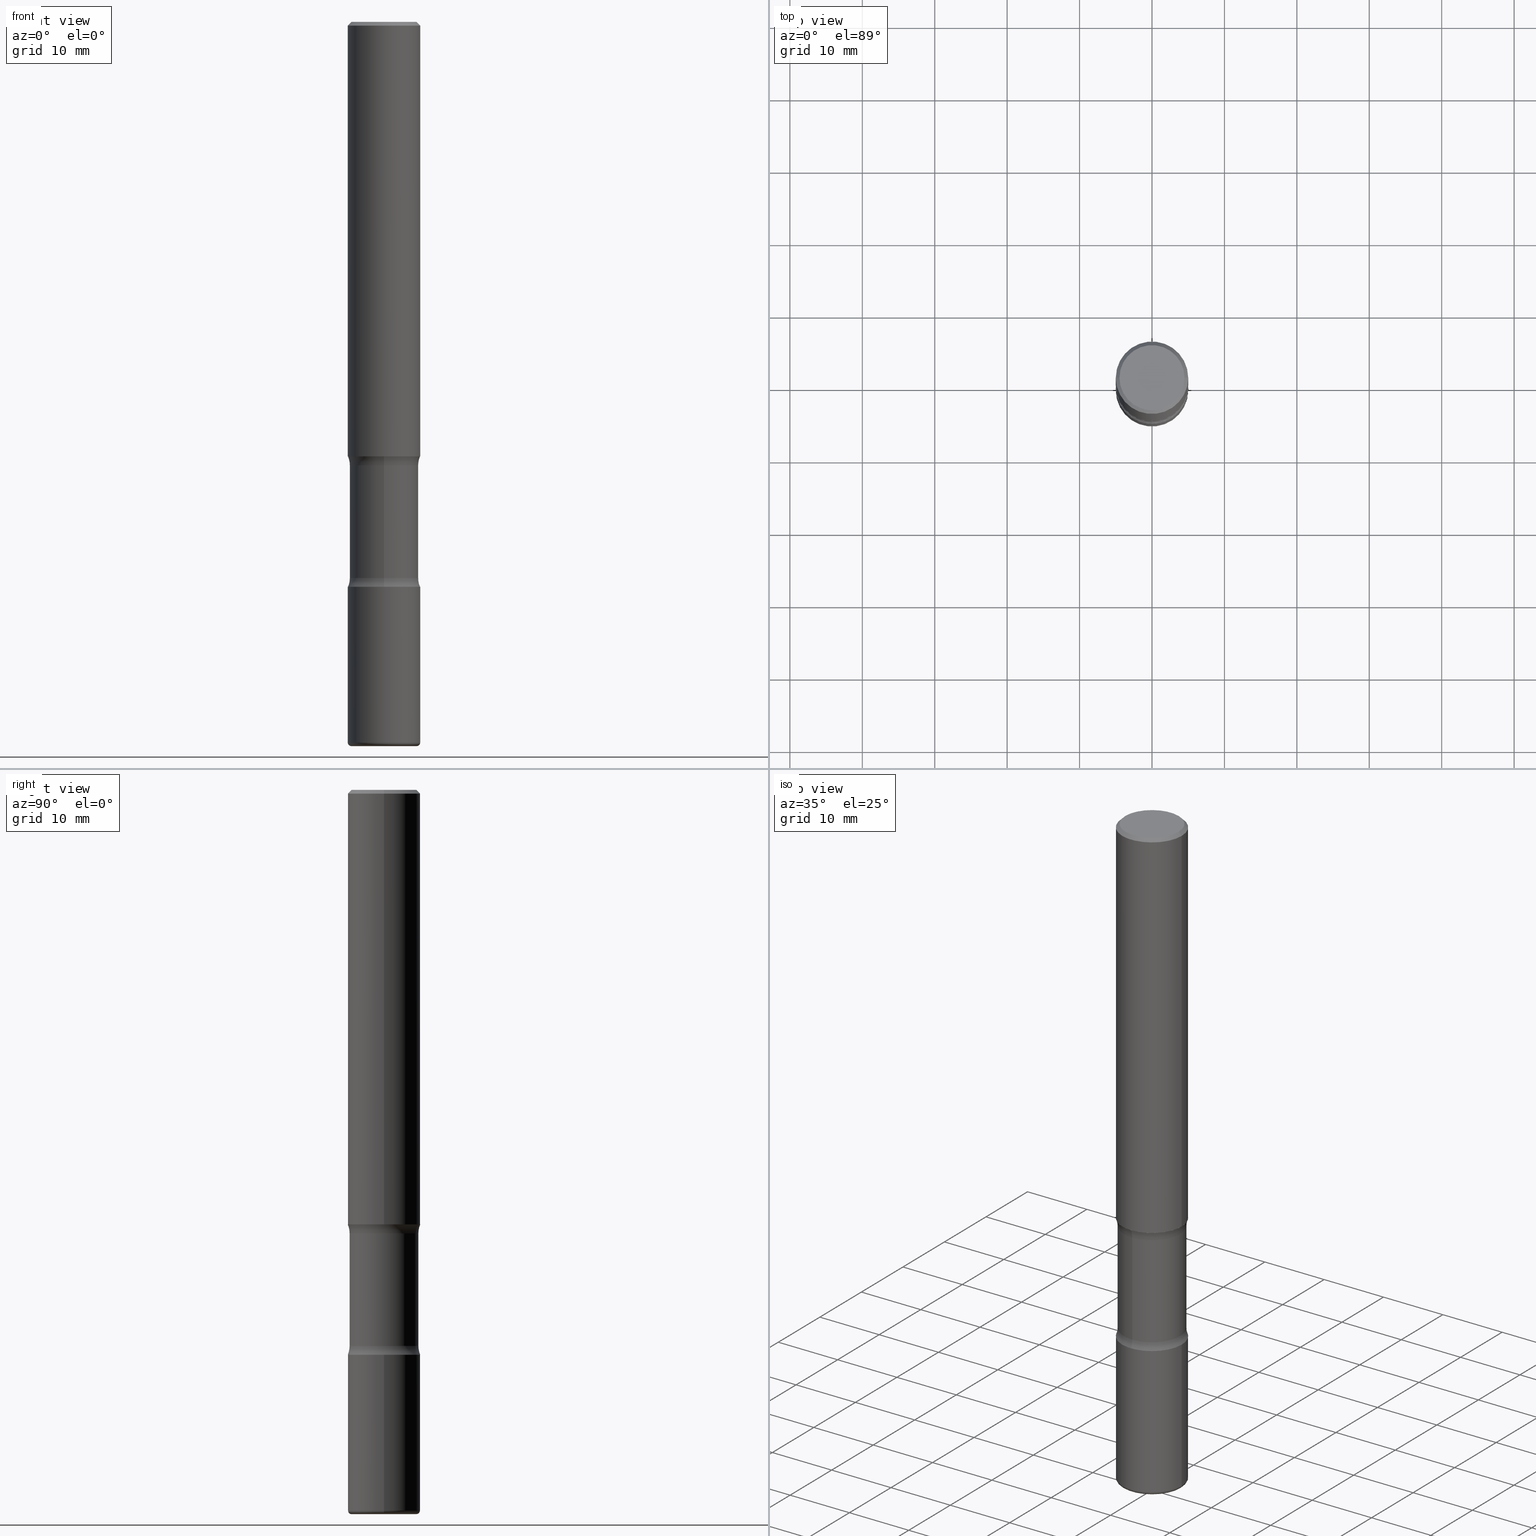
[diagram: canonical four-view strip — front | top / right | iso, engineering-drawing reading convention]
A machine part, canonical four-view strip (front | top / right | iso — engineering-drawing reading convention). The complete STEP part file that produces these views, byte-faithful:
ISO-10303-21;
HEADER;
FILE_DESCRIPTION (( 'STEP AP203' ),
    '1' );
FILE_NAME ('47671.STEP',
    '2024-03-02T06:51:45',
    ( '' ),
    ( '' ),
    'SwSTEP 2.0',
    'SolidWorks 2023',
    '' );
FILE_SCHEMA (( 'CONFIG_CONTROL_DESIGN' ));
ENDSEC;

DATA;
#1 = ADVANCED_FACE ( 'NONE', ( #278 ), #286, .T. ) ;
#2 = DIRECTION ( 'NONE',  ( -2.445468806185136597E-29, 3.491481338843145583E-15, 1.000000000000000000 ) ) ;
#3 = DIRECTION ( 'NONE',  ( -6.982962677686266711E-15, -1.000000000000000000, 3.491481338843145583E-15 ) ) ;
#4 = ORIENTED_EDGE ( 'NONE', *, *, #156, .T. ) ;
#5 = DIRECTION ( 'NONE',  ( 2.540626945080028130E-29, -3.355209467880746123E-15, -1.000000000000000000 ) ) ;
#6 = DIRECTION ( 'NONE',  ( 1.000000000000000000, -6.982962677686265133E-15, 0.000000000000000000 ) ) ;
#7 = DIRECTION ( 'NONE',  ( -2.445468806185136877E-29, 3.491481338843145188E-15, 1.000000000000000000 ) ) ;
#8 = DIRECTION ( 'NONE',  ( 1.000000000000000000, -6.982962677686266711E-15, 4.875932113059880811E-29 ) ) ;
#9 = DIRECTION ( 'NONE',  ( 1.000000000000000000, -6.982962677686266711E-15, 0.000000000000000000 ) ) ;
#10 = EDGE_CURVE ( 'NONE', #191, #338, #199, .T. ) ;
#11 = AXIS2_PLACEMENT_3D ( 'NONE', #425, #376, #305 ) ;
#12 = VERTEX_POINT ( 'NONE', #237 ) ;
#13 = VERTEX_POINT ( 'NONE', #549 ) ;
#14 =( NAMED_UNIT ( * ) SI_UNIT ( $, .STERADIAN. ) SOLID_ANGLE_UNIT ( ) );
#15 = DIMENSIONAL_EXPONENTS ( 1.000000000000000000, 0.000000000000000000, 0.000000000000000000, 0.000000000000000000, 0.000000000000000000, 0.000000000000000000, 0.000000000000000000 ) ;
#16 = APPLICATION_CONTEXT ( 'configuration controlled 3d designs of mechanical parts and assemblies' ) ;
#17 = DATE_AND_TIME ( #439, #479 ) ;
#18 = AXIS2_PLACEMENT_3D ( 'NONE', #74, #330, #35 ) ;
#19 = FACE_OUTER_BOUND ( 'NONE', #62, .T. ) ;
#20 = CIRCLE ( 'NONE', #486, 0.1968499999999999417 ) ;
#21 = DIRECTION ( 'NONE',  ( 1.000000000000000000, -6.982962677686265133E-15, 0.000000000000000000 ) ) ;
#22 = AXIS2_PLACEMENT_3D ( 'NONE', #393, #180, #222 ) ;
#23 = ORIENTED_EDGE ( 'NONE', *, *, #318, .T. ) ;
#24 = EDGE_CURVE ( 'NONE', #368, #191, #263, .T. ) ;
#25 = CYLINDRICAL_SURFACE ( 'NONE', #207, 0.1968500000000001360 ) ;
#26 = ORIENTED_EDGE ( 'NONE', *, *, #119, .F. ) ;
#27 = FACE_OUTER_BOUND ( 'NONE', #541, .T. ) ;
#28 = AXIS2_PLACEMENT_3D ( 'NONE', #174, #246, #81 ) ;
#29 = AXIS2_PLACEMENT_3D ( 'NONE', #248, #86, #505 ) ;
#30 = SECURITY_CLASSIFICATION ( '', '', #400 ) ;
#31 = DIRECTION ( 'NONE',  ( 2.445468806185136597E-29, -3.491481338843145583E-15, -1.000000000000000000 ) ) ;
#32 = EDGE_LOOP ( 'NONE', ( #195, #364, #514, #164 ) ) ;
#33 = CARTESIAN_POINT ( 'NONE',  ( 4.890937612370289799E-31, -6.982962677686315028E-17, -0.02000000000000006981 ) ) ;
#34 = CYLINDRICAL_SURFACE ( 'NONE', #406, 0.1968500000000001360 ) ;
#35 = DIRECTION ( 'NONE',  ( -6.982962677686264344E-15, -1.000000000000000000, 0.000000000000000000 ) ) ;
#36 = DATE_TIME_ROLE ( 'classification_date' ) ;
#37 = ORIENTED_EDGE ( 'NONE', *, *, #408, .F. ) ;
#38 = CYLINDRICAL_SURFACE ( 'NONE', #241, 0.1870000000000000828 ) ;
#39 = CARTESIAN_POINT ( 'NONE',  ( -0.1968499999999999417, 1.304766576325678113E-15, -0.02000000000000006981 ) ) ;
#40 = CIRCLE ( 'NONE', #349, 0.1968500000000002748 ) ;
#41 = CARTESIAN_POINT ( 'NONE',  ( 1.305814020727429425E-15, 0.1869999999999864548, -3.937000000000000721 ) ) ;
#42 = ORGANIZATION ( 'UNSPECIFIED', 'UNSPECIFIED', '' ) ;
#43 = ORIENTED_EDGE ( 'NONE', *, *, #452, .F. ) ;
#44 = APPLICATION_CONTEXT ( 'configuration controlled 3d designs of mechanical parts and assemblies' ) ;
#45 = DIRECTION ( 'NONE',  ( 1.000000000000000000, -6.982962677686266711E-15, 4.876176775795935793E-29 ) ) ;
#46 = LINE ( 'NONE', #214, #151 ) ;
#47 = ORIENTED_EDGE ( 'NONE', *, *, #524, .F. ) ;
#48 = FACE_OUTER_BOUND ( 'NONE', #311, .T. ) ;
#49 = DIRECTION ( 'NONE',  ( -2.445468806185136597E-29, 3.491481338843145583E-15, 1.000000000000000000 ) ) ;
#50 = UNCERTAINTY_MEASURE_WITH_UNIT (LENGTH_MEASURE( 1.000000000000000082E-05 ), #225, 'distance_accuracy_value', 'NONE');
#51 = PERSON_AND_ORGANIZATION ( #398, #42 ) ;
#52 = CARTESIAN_POINT ( 'NONE',  ( -1.350489030861270998E-15, -0.1968500000000086292, -2.362199999999999189 ) ) ;
#53 = AXIS2_PLACEMENT_3D ( 'NONE', #259, #298, #8 ) ;
#54 = EDGE_LOOP ( 'NONE', ( #118, #334 ) ) ;
#55 = DIRECTION ( 'NONE',  ( -2.445468806185136877E-29, 3.491481338843145188E-15, 1.000000000000000000 ) ) ;
#56 = CALENDAR_DATE ( 2024, 2, 3 ) ;
#57 = PERSON_AND_ORGANIZATION ( #398, #42 ) ;
#58 = DIRECTION ( 'NONE',  ( -1.000000000000000000, 6.982962677686265922E-15, -4.876176775795935793E-29 ) ) ;
#59 = PERSON_AND_ORGANIZATION ( #398, #42 ) ;
#60 = CIRCLE ( 'NONE', #109, 0.1968500000000001082 ) ;
#61 = AXIS2_PLACEMENT_3D ( 'NONE', #251, #244, #90 ) ;
#62 = EDGE_LOOP ( 'NONE', ( #70, #87 ) ) ;
#63 = DIRECTION ( 'NONE',  ( 2.438088387897960049E-29, -3.491481338843145188E-15, -1.000000000000000000 ) ) ;
#64 = EDGE_CURVE ( 'NONE', #466, #215, #20, .T. ) ;
#65 = CC_DESIGN_PERSON_AND_ORGANIZATION_ASSIGNMENT ( #142, #145, ( #224 ) ) ;
#66 = ORIENTED_EDGE ( 'NONE', *, *, #531, .F. ) ;
#67 = CIRCLE ( 'NONE', #29, 0.1771500000000001962 ) ;
#68 = ORIENTED_EDGE ( 'NONE', *, *, #221, .F. ) ;
#69 = VERTEX_POINT ( 'NONE', #515 ) ;
#70 = ORIENTED_EDGE ( 'NONE', *, *, #221, .T. ) ;
#71 = COORDINATED_UNIVERSAL_TIME_OFFSET ( 5, 0, .BEHIND. ) ;
#72 = ADVANCED_FACE ( 'NONE', ( #507 ), #123, .F. ) ;
#73 = DIRECTION ( 'NONE',  ( 2.540626945080028130E-29, -3.355209467880745729E-15, -1.000000000000000000 ) ) ;
#74 = CARTESIAN_POINT ( 'NONE',  ( 2.178684355438174110E-15, 0.3119999999999916729, -2.410836174808471011 ) ) ;
#75 = ORIENTED_EDGE ( 'NONE', *, *, #524, .T. ) ;
#76 = AXIS2_PLACEMENT_3D ( 'NONE', #483, #149, #230 ) ;
#77 = TOROIDAL_SURFACE ( 'NONE', #97, 0.1771500000000001962, 0.01969999999999985998 ) ;
#78 = DIRECTION ( 'NONE',  ( 2.540626945080028130E-29, -3.355209467880746123E-15, -1.000000000000000000 ) ) ;
#79 = DIRECTION ( 'NONE',  ( -2.445468806185136597E-29, 3.491481338843145583E-15, 1.000000000000000000 ) ) ;
#80 = ORIENTED_EDGE ( 'NONE', *, *, #348, .F. ) ;
#81 = DIRECTION ( 'NONE',  ( 6.982962677686266711E-15, 1.000000000000000000, -2.921762560068729411E-15 ) ) ;
#82 = DIRECTION ( 'NONE',  ( -1.000000000000000000, 6.982962677686265922E-15, -4.876176775795935793E-29 ) ) ;
#83 = ORIENTED_EDGE ( 'NONE', *, *, #153, .F. ) ;
#84 = DIRECTION ( 'NONE',  ( 2.438088387897960049E-29, -3.491481338843145188E-15, -1.000000000000000000 ) ) ;
#85 = EDGE_CURVE ( 'NONE', #191, #368, #471, .T. ) ;
#86 = DIRECTION ( 'NONE',  ( -2.445468806185136597E-29, 3.491481338843145583E-15, 1.000000000000000000 ) ) ;
#87 = ORIENTED_EDGE ( 'NONE', *, *, #408, .T. ) ;
#88 = DIRECTION ( 'NONE',  ( 1.000000000000000000, -6.982962677686266711E-15, 0.000000000000000000 ) ) ;
#89 = VECTOR ( 'NONE', #73, 39.37007874015748143 ) ;
#90 = DIRECTION ( 'NONE',  ( 1.000000000000000000, -6.982962677686265133E-15, 0.000000000000000000 ) ) ;
#91 = TOROIDAL_SURFACE ( 'NONE', #385, 0.1771500000000001962, 0.01969999999999985998 ) ;
#92 = DIRECTION ( 'NONE',  ( 1.000000000000000000, -6.982962677686265133E-15, 0.000000000000000000 ) ) ;
#93 = ORIENTED_EDGE ( 'NONE', *, *, #348, .T. ) ;
#94 = ORIENTED_EDGE ( 'NONE', *, *, #10, .T. ) ;
#95 = CARTESIAN_POINT ( 'NONE',  ( -2.140475375304643950E-15, -0.3120000000000106577, -3.022263825191529474 ) ) ;
#96 = AXIS2_PLACEMENT_3D ( 'NONE', #414, #5, #420 ) ;
#97 = AXIS2_PLACEMENT_3D ( 'NONE', #362, #545, #358 ) ;
#98 = VERTEX_POINT ( 'NONE', #511 ) ;
#99 = ORIENTED_EDGE ( 'NONE', *, *, #341, .F. ) ;
#100 = DIRECTION ( 'NONE',  ( 6.860497997771529196E-15, 1.000000000000000000, 0.000000000000000000 ) ) ;
#101 = VERTEX_POINT ( 'NONE', #522 ) ;
#102 = COORDINATED_UNIVERSAL_TIME_OFFSET ( 5, 0, .BEHIND. ) ;
#103 = CARTESIAN_POINT ( 'NONE',  ( 0.000000000000000000, 0.000000000000000000, 0.000000000000000000 ) ) ;
#104 = AXIS2_PLACEMENT_3D ( 'NONE', #339, #79, #517 ) ;
#105 = DIRECTION ( 'NONE',  ( 2.540626945080028130E-29, -3.355209467880746123E-15, -1.000000000000000000 ) ) ;
#106 = EDGE_CURVE ( 'NONE', #215, #466, #556, .T. ) ;
#107 = VERTEX_POINT ( 'NONE', #289 ) ;
#108 = EDGE_LOOP ( 'NONE', ( #281, #94, #409, #115 ) ) ;
#109 = AXIS2_PLACEMENT_3D ( 'NONE', #210, #421, #92 ) ;
#110 = AXIS2_PLACEMENT_3D ( 'NONE', #457, #238, #124 ) ;
#111 = ORIENTED_EDGE ( 'NONE', *, *, #113, .T. ) ;
#112 = DIRECTION ( 'NONE',  ( -2.445468806185136597E-29, 3.491481338843145583E-15, 1.000000000000000000 ) ) ;
#113 = EDGE_CURVE ( 'NONE', #101, #215, #138, .T. ) ;
#114 = VERTEX_POINT ( 'NONE', #52 ) ;
#115 = ORIENTED_EDGE ( 'NONE', *, *, #433, .F. ) ;
#116 = CARTESIAN_POINT ( 'NONE',  ( 5.847933680864636237E-29, -8.485685715193371918E-15, -2.410836174808470123 ) ) ;
#117 = CARTESIAN_POINT ( 'NONE',  ( 7.390851908567657271E-29, -1.055217774671693035E-14, -3.022263825191530362 ) ) ;
#118 = ORIENTED_EDGE ( 'NONE', *, *, #156, .F. ) ;
#119 = EDGE_CURVE ( 'NONE', #107, #466, #552, .T. ) ;
#120 = AXIS2_PLACEMENT_3D ( 'NONE', #264, #474, #434 ) ;
#121 = APPROVAL_PERSON_ORGANIZATION ( #57, #437, #484 ) ;
#122 = CC_DESIGN_DATE_AND_TIME_ASSIGNMENT ( #315, #482, ( #224 ) ) ;
#123 = PLANE ( 'NONE',  #239 ) ;
#124 = DIRECTION ( 'NONE',  ( -6.982962677686265133E-15, -1.000000000000000000, 0.000000000000000000 ) ) ;
#125 = CARTESIAN_POINT ( 'NONE',  ( 5.709247840935720689E-29, -8.344153093566332027E-15, -2.362200000000000077 ) ) ;
#126 = ORIENTED_EDGE ( 'NONE', *, *, #85, .T. ) ;
#127 = LINE ( 'NONE', #379, #441 ) ;
#128 = CARTESIAN_POINT ( 'NONE',  ( 1.305814020727390771E-15, 0.1869999999999916174, -2.410836174808470567 ) ) ;
#129 = DIRECTION ( 'NONE',  ( 2.540626945080028130E-29, -3.355209467880746123E-15, -1.000000000000000000 ) ) ;
#130 = VERTEX_POINT ( 'NONE', #523 ) ;
#131 = TOROIDAL_SURFACE ( 'NONE', #440, 0.3120000000000001106, 0.1250000000000000833 ) ;
#132 = CIRCLE ( 'NONE', #96, 0.1968500000000001915 ) ;
#133 = DIRECTION ( 'NONE',  ( 1.000000000000000000, -6.982962677686266711E-15, 4.876176775795935793E-29 ) ) ;
#134 = CIRCLE ( 'NONE', #61, 0.1968500000000001082 ) ;
#135 = PRODUCT ( '47671', '47671', '', ( #436 ) ) ;
#136 = APPROVAL_PERSON_ORGANIZATION ( #161, #497, #253 ) ;
#137 = LENGTH_MEASURE_WITH_UNIT ( LENGTH_MEASURE( 0.02539999999999999897 ), #312 );
#138 = LINE ( 'NONE', #307, #546 ) ;
#139 = EDGE_CURVE ( 'NONE', #114, #275, #226, .T. ) ;
#140 = CALENDAR_DATE ( 2024, 2, 3 ) ;
#141 = ORIENTED_EDGE ( 'NONE', *, *, #231, .T. ) ;
#142 = PERSON_AND_ORGANIZATION ( #398, #42 ) ;
#143 = ADVANCED_FACE ( 'NONE', ( #310 ), #279, .F. ) ;
#144 = CIRCLE ( 'NONE', #104, 0.1968500000000001915 ) ;
#145 = PERSON_AND_ORGANIZATION_ROLE ( 'creator' ) ;
#146 = PRODUCT_RELATED_PRODUCT_CATEGORY ( 'detail', '', ( #135 ) ) ;
#147 = DIRECTION ( 'NONE',  ( -1.000000000000000000, 7.105427357600978193E-15, 0.000000000000000000 ) ) ;
#148 = DIRECTION ( 'NONE',  ( -2.445468806185136597E-29, 3.491481338843145583E-15, 1.000000000000000000 ) ) ;
#149 = DIRECTION ( 'NONE',  ( -2.540626945080027570E-29, 3.355209467880745729E-15, 1.000000000000000000 ) ) ;
#150 = CARTESIAN_POINT ( 'NONE',  ( -1.316701078222244837E-15, -0.1870000000000086315, -2.410836174808469679 ) ) ;
#151 = VECTOR ( 'NONE', #7, 39.37007874015748143 ) ;
#152 = COORDINATED_UNIVERSAL_TIME_OFFSET ( 5, 0, .BEHIND. ) ;
#153 = EDGE_CURVE ( 'NONE', #372, #476, #477, .T. ) ;
#154 = CIRCLE ( 'NONE', #519, 0.1968500000000001082 ) ;
#155 = ORIENTED_EDGE ( 'NONE', *, *, #106, .T. ) ;
#156 = EDGE_CURVE ( 'NONE', #275, #114, #40, .T. ) ;
#157 = DIRECTION ( 'NONE',  ( 6.982962677686266711E-15, 1.000000000000000000, -2.921762560068729806E-15 ) ) ;
#158 = AXIS2_PLACEMENT_3D ( 'NONE', #548, #160, #282 ) ;
#159 = CC_DESIGN_SECURITY_CLASSIFICATION ( #30, ( #321 ) ) ;
#160 = DIRECTION ( 'NONE',  ( 2.445468806185136597E-29, -3.491481338843145583E-15, -1.000000000000000000 ) ) ;
#161 = PERSON_AND_ORGANIZATION ( #398, #42 ) ;
#162 = CYLINDRICAL_SURFACE ( 'NONE', #365, 0.1968500000000000527 ) ;
#163 = EDGE_CURVE ( 'NONE', #101, #98, #60, .T. ) ;
#164 = ORIENTED_EDGE ( 'NONE', *, *, #394, .F. ) ;
#165 = FACE_OUTER_BOUND ( 'NONE', #54, .T. ) ;
#166 = AXIS2_PLACEMENT_3D ( 'NONE', #401, #105, #403 ) ;
#167 = ORIENTED_EDGE ( 'NONE', *, *, #389, .F. ) ;
#168 = CARTESIAN_POINT ( 'NONE',  ( -0.1771500000000001962, -1.238285602396647324E-14, -3.937000000000000277 ) ) ;
#169 = CARTESIAN_POINT ( 'NONE',  ( 7.509790156913936305E-29, -1.072199004345341739E-14, -3.070900000000000407 ) ) ;
#170 = ORIENTED_EDGE ( 'NONE', *, *, #323, .F. ) ;
#171 = EDGE_CURVE ( 'NONE', #475, #69, #46, .T. ) ;
#172 = CARTESIAN_POINT ( 'NONE',  ( -1.316701078222226890E-15, -0.1870000000000106022, -3.022263825191529918 ) ) ;
#173 = ORIENTED_EDGE ( 'NONE', *, *, #64, .F. ) ;
#174 = CARTESIAN_POINT ( 'NONE',  ( 9.710227154047748282E-29, -1.362793696358492956E-14, -3.937000000000000277 ) ) ;
#175 = CLOSED_SHELL ( 'NONE', ( #495, #503, #327, #516, #423, #178 ) ) ;
#176 = VECTOR ( 'NONE', #377, 39.37007874015748143 ) ;
#177 = CARTESIAN_POINT ( 'NONE',  ( 5.709247840935720689E-29, -8.344153093566332027E-15, -2.362200000000000077 ) ) ;
#178 = ADVANCED_FACE ( 'NONE', ( #520 ), #306, .F. ) ;
#179 = ORIENTED_EDGE ( 'NONE', *, *, #119, .T. ) ;
#180 = DIRECTION ( 'NONE',  ( 0.000000000000000000, 0.000000000000000000, 1.000000000000000000 ) ) ;
#181 = CARTESIAN_POINT ( 'NONE',  ( 9.579634954469036932E-29, -1.367717984865025539E-14, -3.917300000000000448 ) ) ;
#182 = FACE_OUTER_BOUND ( 'NONE', #292, .T. ) ;
#183 = AXIS2_PLACEMENT_3D ( 'NONE', #447, #488, #443 ) ;
#184 = CIRCLE ( 'NONE', #419, 0.1250000000000001110 ) ;
#185 = DIRECTION ( 'NONE',  ( 1.000000000000000000, -6.982962677686272233E-15, 0.000000000000000000 ) ) ;
#186 = ADVANCED_FACE ( 'NONE', ( #19 ), #351, .F. ) ;
#187 = CARTESIAN_POINT ( 'NONE',  ( 7.386223780689915972E-29, -1.055880548925453445E-14, -3.022263825191530362 ) ) ;
#188 = AXIS2_PLACEMENT_3D ( 'NONE', #192, #2, #45 ) ;
#189 = EDGE_CURVE ( 'NONE', #107, #13, #384, .T. ) ;
#190 = ORIENTED_EDGE ( 'NONE', *, *, #427, .T. ) ;
#191 = VERTEX_POINT ( 'NONE', #150 ) ;
#192 = CARTESIAN_POINT ( 'NONE',  ( 0.000000000000000000, 0.000000000000000000, 0.000000000000000000 ) ) ;
#193 = CONICAL_SURFACE ( 'NONE', #227, 0.1968499999999999417, 0.7853981633974479459 ) ;
#194 = AXIS2_PLACEMENT_3D ( 'NONE', #169, #148, #185 ) ;
#195 = ORIENTED_EDGE ( 'NONE', *, *, #544, .F. ) ;
#196 = CARTESIAN_POINT ( 'NONE',  ( 9.627810689950883669E-29, -1.374596203102546341E-14, -3.937000000000000277 ) ) ;
#197 = EDGE_LOOP ( 'NONE', ( #93, #328, #66, #83 ) ) ;
#198 = DIRECTION ( 'NONE',  ( 6.982962677686265922E-15, 1.000000000000000000, -3.355209467880746123E-15 ) ) ;
#199 = LINE ( 'NONE', #456, #89 ) ;
#200 = CARTESIAN_POINT ( 'NONE',  ( 0.000000000000000000, 0.000000000000000000, 0.000000000000000000 ) ) ;
#201 = DIRECTION ( 'NONE',  ( 6.982962677686265922E-15, 1.000000000000000000, -3.355209467880746123E-15 ) ) ;
#202 = ADVANCED_BREP_SHAPE_REPRESENTATION ( '47671', ( #481, #490, #293, #22 ), #357 ) ;
#203 = CARTESIAN_POINT ( 'NONE',  ( 0.1771500000000001962, -1.491421168700237936E-14, -3.917300000000000448 ) ) ;
#204 = APPROVAL_STATUS ( 'not_yet_approved' ) ;
#205 = ORIENTED_EDGE ( 'NONE', *, *, #283, .T. ) ;
#206 = AXIS2_PLACEMENT_3D ( 'NONE', #260, #49, #9 ) ;
#207 = AXIS2_PLACEMENT_3D ( 'NONE', #103, #446, #532 ) ;
#208 = DIRECTION ( 'NONE',  ( -1.000000000000000000, 6.982962677686265922E-15, -4.876176775795935793E-29 ) ) ;
#209 = FACE_OUTER_BOUND ( 'NONE', #280, .T. ) ;
#210 = CARTESIAN_POINT ( 'NONE',  ( 5.776686413970529753E-29, -8.247577218615279626E-15, -2.362200000000000077 ) ) ;
#211 = ORIENTED_EDGE ( 'NONE', *, *, #242, .F. ) ;
#212 = ADVANCED_FACE ( 'NONE', ( #489 ), #274, .F. ) ;
#213 = CARTESIAN_POINT ( 'NONE',  ( 7.509790156913936305E-29, -1.072199004345341739E-14, -3.070900000000000407 ) ) ;
#214 = CARTESIAN_POINT ( 'NONE',  ( -0.1968500000000001360, 1.398703375343758182E-15, -9.682923725166790684E-30 ) ) ;
#215 = VERTEX_POINT ( 'NONE', #249 ) ;
#216 = CARTESIAN_POINT ( 'NONE',  ( 0.1968499999999999417, -1.420318657638188727E-15, -0.02000000000000006981 ) ) ;
#217 = ORIENTED_EDGE ( 'NONE', *, *, #510, .T. ) ;
#218 = APPLICATION_PROTOCOL_DEFINITION ( 'international standard', 'config_control_design', 1994, #44 ) ;
#219 = CIRCLE ( 'NONE', #536, 0.1250000000000000278 ) ;
#220 = CARTESIAN_POINT ( 'NONE',  ( -0.1771500000000001962, -1.241845339225123848E-14, -3.917300000000000448 ) ) ;
#221 = EDGE_CURVE ( 'NONE', #560, #324, #132, .T. ) ;
#222 = DIRECTION ( 'NONE',  ( 1.000000000000000000, 0.000000000000000000, 0.000000000000000000 ) ) ;
#223 = ORIENTED_EDGE ( 'NONE', *, *, #113, .F. ) ;
#224 = PRODUCT_DEFINITION ( 'UNKNOWN', '', #321, #250 ) ;
#225 =( CONVERSION_BASED_UNIT ( 'INCH', #137 ) LENGTH_UNIT ( ) NAMED_UNIT ( #15 ) );
#226 = CIRCLE ( 'NONE', #320, 0.1968500000000002748 ) ;
#227 = AXIS2_PLACEMENT_3D ( 'NONE', #405, #31, #332 ) ;
#228 = PERSON_AND_ORGANIZATION ( #398, #42 ) ;
#229 = EDGE_CURVE ( 'NONE', #13, #215, #375, .T. ) ;
#230 = DIRECTION ( 'NONE',  ( -6.982962677686265922E-15, -1.000000000000000000, 3.355209467880745729E-15 ) ) ;
#231 = EDGE_CURVE ( 'NONE', #13, #107, #535, .T. ) ;
#232 = ORIENTED_EDGE ( 'NONE', *, *, #189, .T. ) ;
#233 = AXIS2_PLACEMENT_3D ( 'NONE', #203, #3, #333 ) ;
#234 = AXIS2_PLACEMENT_3D ( 'NONE', #196, #296, #82 ) ;
#235 = ORIENTED_EDGE ( 'NONE', *, *, #171, .F. ) ;
#236 = EDGE_LOOP ( 'NONE', ( #500, #179, #504, #345 ) ) ;
#237 = CARTESIAN_POINT ( 'NONE',  ( 1.305814020727405957E-15, 0.1869999999999895079, -3.022263825191530806 ) ) ;
#238 = DIRECTION ( 'NONE',  ( -1.000000000000000000, 6.982962677686265922E-15, -4.883557194083112901E-29 ) ) ;
#239 = AXIS2_PLACEMENT_3D ( 'NONE', #467, #84, #208 ) ;
#240 = VERTEX_POINT ( 'NONE', #168 ) ;
#241 = AXIS2_PLACEMENT_3D ( 'NONE', #374, #502, #464 ) ;
#242 = EDGE_CURVE ( 'NONE', #476, #130, #127, .T. ) ;
#243 = DIRECTION ( 'NONE',  ( 6.982962677686266711E-15, 1.000000000000000000, -2.921762560068729017E-15 ) ) ;
#244 = DIRECTION ( 'NONE',  ( -2.445468806185136597E-29, 3.491481338843145583E-15, 1.000000000000000000 ) ) ;
#245 = ORIENTED_EDGE ( 'NONE', *, *, #540, .F. ) ;
#246 = DIRECTION ( 'NONE',  ( 2.540626945080028130E-29, -3.355209467880746123E-15, -1.000000000000000000 ) ) ;
#247 = CARTESIAN_POINT ( 'NONE',  ( 0.1968500000000000805, -1.505177605175279857E-14, -3.917300000000000448 ) ) ;
#248 = CARTESIAN_POINT ( 'NONE',  ( 9.627810689950883669E-29, -1.374596203102546341E-14, -3.937000000000000277 ) ) ;
#249 = CARTESIAN_POINT ( 'NONE',  ( -0.1968499999999999417, 1.304766576325678113E-15, -0.02000000000000006981 ) ) ;
#250 = DESIGN_CONTEXT ( 'detailed design', #44, 'design' ) ;
#251 = CARTESIAN_POINT ( 'NONE',  ( 9.579634954469036932E-29, -1.367717984865025539E-14, -3.917300000000000448 ) ) ;
#252 = ADVANCED_FACE ( 'NONE', ( #48 ), #131, .F. ) ;
#253 = APPROVAL_ROLE ( '' ) ;
#254 = EDGE_LOOP ( 'NONE', ( #352, #435 ) ) ;
#255 = CARTESIAN_POINT ( 'NONE',  ( 0.1771500000000001962, -1.498299386937758739E-14, -3.937000000000000277 ) ) ;
#256 = ADVANCED_FACE ( 'NONE', ( #369 ), #462, .T. ) ;
#257 = ORIENTED_EDGE ( 'NONE', *, *, #389, .T. ) ;
#258 = PLANE ( 'NONE',  #460 ) ;
#259 = CARTESIAN_POINT ( 'NONE',  ( -1.043851414335219820E-46, 1.490343170380447200E-32, 4.268512490100411279E-18 ) ) ;
#260 = CARTESIAN_POINT ( 'NONE',  ( 4.890937612370289799E-31, -6.982962677686315028E-17, -0.02000000000000006981 ) ) ;
#261 = DIRECTION ( 'NONE',  ( 1.000000000000000000, -6.860497997771530774E-15, 4.842467728730022328E-29 ) ) ;
#262 = DIRECTION ( 'NONE',  ( 1.000000000000000000, -6.982962677686266711E-15, 4.883557194083112340E-29 ) ) ;
#263 = CIRCLE ( 'NONE', #313, 0.1870000000000001106 ) ;
#264 = CARTESIAN_POINT ( 'NONE',  ( 7.390851908567657271E-29, -1.055217774671693035E-14, -3.022263825191530362 ) ) ;
#265 = EDGE_LOOP ( 'NONE', ( #397, #126, #360, #309 ) ) ;
#266 = COORDINATED_UNIVERSAL_TIME_OFFSET ( 5, 0, .BEHIND. ) ;
#267 = CALENDAR_DATE ( 2024, 2, 3 ) ;
#268 = ORIENTED_EDGE ( 'NONE', *, *, #24, .F. ) ;
#269 = DIRECTION ( 'NONE',  ( 1.000000000000000000, -6.860497997771530774E-15, 4.842467728730022328E-29 ) ) ;
#270 = CARTESIAN_POINT ( 'NONE',  ( 7.509790156913936305E-29, -1.072199004345341739E-14, -3.070900000000000407 ) ) ;
#271 = AXIS2_PLACEMENT_3D ( 'NONE', #367, #513, #550 ) ;
#272 = LOCAL_TIME ( 1, 51, 45.00000000000000000, #152 ) ;
#273 = DATE_AND_TIME ( #267, #272 ) ;
#274 = PLANE ( 'NONE',  #183 ) ;
#275 = VERTEX_POINT ( 'NONE', #291 ) ;
#276 = FACE_OUTER_BOUND ( 'NONE', #32, .T. ) ;
#277 = CC_DESIGN_DATE_AND_TIME_ASSIGNMENT ( #413, #36, ( #30 ) ) ;
#278 = FACE_OUTER_BOUND ( 'NONE', #422, .T. ) ;
#279 = TOROIDAL_SURFACE ( 'NONE', #120, 0.3120000000000000551, 0.1250000000000000278 ) ;
#280 = EDGE_LOOP ( 'NONE', ( #80, #99 ) ) ;
#281 = ORIENTED_EDGE ( 'NONE', *, *, #24, .T. ) ;
#282 = DIRECTION ( 'NONE',  ( -1.000000000000000000, 6.982962677686266711E-15, 0.000000000000000000 ) ) ;
#283 = EDGE_CURVE ( 'NONE', #12, #338, #430, .T. ) ;
#284 = CARTESIAN_POINT ( 'NONE',  ( 5.832814217159742143E-29, -8.507337647765213396E-15, -2.410836174808470123 ) ) ;
#285 = DIRECTION ( 'NONE',  ( 2.540626945080028130E-29, -3.355209467880746123E-15, -1.000000000000000000 ) ) ;
#286 = CONICAL_SURFACE ( 'NONE', #158, 0.1968499999999999417, 0.7853981633974479459 ) ;
#287 = CIRCLE ( 'NONE', #529, 0.01969999999999985998 ) ;
#288 = DIRECTION ( 'NONE',  ( 2.540626945080028130E-29, -3.355209467880746123E-15, -1.000000000000000000 ) ) ;
#289 = CARTESIAN_POINT ( 'NONE',  ( 0.1768499999999998962, -1.316798864272041549E-15, 4.268512490109333727E-18 ) ) ;
#290 = DIRECTION ( 'NONE',  ( 6.982962677686265133E-15, 1.000000000000000000, -2.775563112689113934E-15 ) ) ;
#291 = CARTESIAN_POINT ( 'NONE',  ( 1.374596203102600378E-15, 0.1968499999999919758, -2.362200000000000966 ) ) ;
#292 = EDGE_LOOP ( 'NONE', ( #297, #268, #190, #4 ) ) ;
#293 = MANIFOLD_SOLID_BREP ( 'Body-Move/Copy2[4]', #449 ) ;
#294 = ADVANCED_FACE ( 'NONE', ( #27 ), #554, .T. ) ;
#295 = PERSON_AND_ORGANIZATION ( #398, #42 ) ;
#296 = DIRECTION ( 'NONE',  ( 2.438088387897960049E-29, -3.491481338843145188E-15, -1.000000000000000000 ) ) ;
#297 = ORIENTED_EDGE ( 'NONE', *, *, #553, .F. ) ;
#298 = DIRECTION ( 'NONE',  ( -2.445468806185136597E-29, 3.491481338843145583E-15, 1.000000000000000000 ) ) ;
#299 = DIRECTION ( 'NONE',  ( -2.445468806185136597E-29, 3.491481338843145583E-15, 1.000000000000000000 ) ) ;
#300 = DIRECTION ( 'NONE',  ( 2.540626945080028130E-29, -3.355209467880746123E-15, -1.000000000000000000 ) ) ;
#301 = ORIENTED_EDGE ( 'NONE', *, *, #394, .T. ) ;
#302 = TOROIDAL_SURFACE ( 'NONE', #166, 0.3120000000000001106, 0.1250000000000000833 ) ;
#303 = DIRECTION ( 'NONE',  ( -0.7071067811865472397, 2.468850131082253905E-15, -0.7071067811865477948 ) ) ;
#304 = CC_DESIGN_APPROVAL ( #437, ( #321 ) ) ;
#305 = DIRECTION ( 'NONE',  ( 6.982962677686266711E-15, 1.000000000000000000, -2.921762560068729017E-15 ) ) ;
#306 = PLANE ( 'NONE',  #518 ) ;
#307 = CARTESIAN_POINT ( 'NONE',  ( -0.1968500000000000527, 1.398703375343757590E-15, -9.682923725166785079E-30 ) ) ;
#308 = DIRECTION ( 'NONE',  ( 2.540626945080027570E-29, -3.355209467880745729E-15, -1.000000000000000000 ) ) ;
#309 = ORIENTED_EDGE ( 'NONE', *, *, #510, .F. ) ;
#310 = FACE_OUTER_BOUND ( 'NONE', #418, .T. ) ;
#311 = EDGE_LOOP ( 'NONE', ( #378, #543, #468, #521 ) ) ;
#312 =( LENGTH_UNIT ( ) NAMED_UNIT ( * ) SI_UNIT ( $, .METRE. ) );
#313 = AXIS2_PLACEMENT_3D ( 'NONE', #284, #78, #243 ) ;
#314 = CIRCLE ( 'NONE', #396, 0.1968500000000001915 ) ;
#315 = DATE_AND_TIME ( #56, #473 ) ;
#316 = ADVANCED_FACE ( 'NONE', ( #508 ), #193, .T. ) ;
#317 = CARTESIAN_POINT ( 'NONE',  ( 1.374596203102617931E-15, 0.1968499999999894223, -3.070900000000000851 ) ) ;
#318 = EDGE_CURVE ( 'NONE', #98, #101, #154, .T. ) ;
#319 = PERSON_AND_ORGANIZATION_ROLE ( 'design_supplier' ) ;
#320 = AXIS2_PLACEMENT_3D ( 'NONE', #177, #129, #382 ) ;
#321 = PRODUCT_DEFINITION_FORMATION_WITH_SPECIFIED_SOURCE ( 'ANY', '', #135, .NOT_KNOWN. ) ;
#322 = DIRECTION ( 'NONE',  ( 2.540626945080028130E-29, -3.355209467880746123E-15, -1.000000000000000000 ) ) ;
#323 = EDGE_CURVE ( 'NONE', #560, #12, #431, .T. ) ;
#324 = VERTEX_POINT ( 'NONE', #336 ) ;
#325 = DIRECTION ( 'NONE',  ( 2.540626945080028130E-29, -3.355209467880746123E-15, -1.000000000000000000 ) ) ;
#326 = CC_DESIGN_APPROVAL ( #404, ( #224 ) ) ;
#327 = ADVANCED_FACE ( 'NONE', ( #209 ), #380, .T. ) ;
#328 = ORIENTED_EDGE ( 'NONE', *, *, #544, .T. ) ;
#329 = CARTESIAN_POINT ( 'NONE',  ( 0.000000000000000000, 0.000000000000000000, 0.000000000000000000 ) ) ;
#330 = DIRECTION ( 'NONE',  ( -1.000000000000000000, 6.982962677686265922E-15, -4.883557194083112901E-29 ) ) ;
#331 = CIRCLE ( 'NONE', #18, 0.1250000000000001110 ) ;
#332 = DIRECTION ( 'NONE',  ( -1.000000000000000000, 6.982962677686266711E-15, 0.000000000000000000 ) ) ;
#333 = DIRECTION ( 'NONE',  ( 1.000000000000000000, -6.982962677686279332E-15, 0.000000000000000000 ) ) ;
#334 = ORIENTED_EDGE ( 'NONE', *, *, #139, .F. ) ;
#335 = CC_DESIGN_PERSON_AND_ORGANIZATION_ASSIGNMENT ( #295, #512, ( #30 ) ) ;
#336 = CARTESIAN_POINT ( 'NONE',  ( -1.350489030861251670E-15, -0.1968500000000109051, -3.070899999999999963 ) ) ;
#337 = DIRECTION ( 'NONE',  ( 0.7071067811865472397, -7.319954787623254468E-15, -0.7071067811865477948 ) ) ;
#338 = VERTEX_POINT ( 'NONE', #172 ) ;
#339 = CARTESIAN_POINT ( 'NONE',  ( 7.509790156913936305E-29, -1.072199004345341739E-14, -3.070900000000000407 ) ) ;
#340 = AXIS2_PLACEMENT_3D ( 'NONE', #117, #285, #201 ) ;
#341 = EDGE_CURVE ( 'NONE', #240, #372, #450, .T. ) ;
#342 =( NAMED_UNIT ( * ) PLANE_ANGLE_UNIT ( ) SI_UNIT ( $, .RADIAN. ) );
#343 = DIRECTION ( 'NONE',  ( 6.982962677686265922E-15, 1.000000000000000000, -3.355209467880745729E-15 ) ) ;
#344 = CC_DESIGN_PERSON_AND_ORGANIZATION_ASSIGNMENT ( #59, #363, ( #321 ) ) ;
#345 = ORIENTED_EDGE ( 'NONE', *, *, #229, .F. ) ;
#346 = APPROVAL_DATE_TIME ( #354, #404 ) ;
#347 = APPROVAL_STATUS ( 'not_yet_approved' ) ;
#348 = EDGE_CURVE ( 'NONE', #372, #240, #67, .T. ) ;
#349 = AXIS2_PLACEMENT_3D ( 'NONE', #125, #300, #417 ) ;
#350 = APPROVAL_PERSON_ORGANIZATION ( #228, #404, #426 ) ;
#351 = PLANE ( 'NONE',  #76 ) ;
#352 = ORIENTED_EDGE ( 'NONE', *, *, #318, .F. ) ;
#353 = CC_DESIGN_PERSON_AND_ORGANIZATION_ASSIGNMENT ( #51, #526, ( #135 ) ) ;
#354 = DATE_AND_TIME ( #140, #498 ) ;
#355 = ADVANCED_FACE ( 'NONE', ( #459 ), #162, .T. ) ;
#356 = PERSON_AND_ORGANIZATION ( #398, #42 ) ;
#357 =( GEOMETRIC_REPRESENTATION_CONTEXT ( 3 ) GLOBAL_UNCERTAINTY_ASSIGNED_CONTEXT ( ( #50 ) ) GLOBAL_UNIT_ASSIGNED_CONTEXT ( ( #225, #342, #14 ) ) REPRESENTATION_CONTEXT ( 'NONE', 'WORKASPACE' ) );
#358 = DIRECTION ( 'NONE',  ( 1.000000000000000000, -6.982962677686266711E-15, 4.883557194083112340E-29 ) ) ;
#359 = APPROVAL_DATE_TIME ( #273, #497 ) ;
#360 = ORIENTED_EDGE ( 'NONE', *, *, #433, .T. ) ;
#361 = ORIENTED_EDGE ( 'NONE', *, *, #452, .T. ) ;
#362 = CARTESIAN_POINT ( 'NONE',  ( 9.579634954469036932E-29, -1.367717984865025539E-14, -3.917300000000000448 ) ) ;
#363 = PERSON_AND_ORGANIZATION_ROLE ( 'creator' ) ;
#364 = ORIENTED_EDGE ( 'NONE', *, *, #341, .T. ) ;
#365 = AXIS2_PLACEMENT_3D ( 'NONE', #329, #412, #370 ) ;
#366 = ORIENTED_EDGE ( 'NONE', *, *, #323, .T. ) ;
#367 = CARTESIAN_POINT ( 'NONE',  ( 9.627810689950883669E-29, -1.374596203102546341E-14, -3.937000000000000277 ) ) ;
#368 = VERTEX_POINT ( 'NONE', #128 ) ;
#369 = FACE_OUTER_BOUND ( 'NONE', #265, .T. ) ;
#370 = DIRECTION ( 'NONE',  ( 1.000000000000000000, -6.982962677686266711E-15, 4.876176775795935793E-29 ) ) ;
#371 = DIRECTION ( 'NONE',  ( 2.540626945080028130E-29, -3.355209467880746123E-15, -1.000000000000000000 ) ) ;
#372 = VERTEX_POINT ( 'NONE', #255 ) ;
#373 = AXIS2_PLACEMENT_3D ( 'NONE', #181, #407, #21 ) ;
#374 = CARTESIAN_POINT ( 'NONE',  ( 9.710227154047748282E-29, -1.362793696358492956E-14, -3.937000000000000277 ) ) ;
#375 = LINE ( 'NONE', #39, #458 ) ;
#376 = DIRECTION ( 'NONE',  ( 2.540626945080028130E-29, -3.355209467880746123E-15, -1.000000000000000000 ) ) ;
#377 = DIRECTION ( 'NONE',  ( 2.540626945080028130E-29, -3.355209467880745729E-15, -1.000000000000000000 ) ) ;
#378 = ORIENTED_EDGE ( 'NONE', *, *, #85, .F. ) ;
#379 = CARTESIAN_POINT ( 'NONE',  ( 0.1968500000000001360, -1.374596203102542594E-15, 9.598753983154306463E-30 ) ) ;
#380 = PLANE ( 'NONE',  #234 ) ;
#381 = ADVANCED_FACE ( 'NONE', ( #501 ), #547, .F. ) ;
#382 = DIRECTION ( 'NONE',  ( 6.982962677686265922E-15, 1.000000000000000000, -2.775563112689112751E-15 ) ) ;
#383 = ORIENTED_EDGE ( 'NONE', *, *, #106, .F. ) ;
#384 = CIRCLE ( 'NONE', #416, 0.1768499999999998962 ) ;
#385 = AXIS2_PLACEMENT_3D ( 'NONE', #499, #112, #262 ) ;
#386 = LOCAL_TIME ( 1, 51, 45.00000000000000000, #71 ) ;
#387 = EDGE_LOOP ( 'NONE', ( #257, #361 ) ) ;
#388 = DIRECTION ( 'NONE',  ( 7.105427357601001859E-15, 1.000000000000000000, -3.491481338843145583E-15 ) ) ;
#389 = EDGE_CURVE ( 'NONE', #130, #69, #144, .T. ) ;
#390 = APPROVAL_STATUS ( 'not_yet_approved' ) ;
#391 = CLOSED_SHELL ( 'NONE', ( #355, #316, #1, #72, #212, #294 ) ) ;
#392 = CC_DESIGN_APPROVAL ( #497, ( #30 ) ) ;
#393 = CARTESIAN_POINT ( 'NONE',  ( 0.000000000000000000, 0.000000000000000000, 0.000000000000000000 ) ) ;
#394 = EDGE_CURVE ( 'NONE', #475, #476, #134, .T. ) ;
#395 = AXIS2_PLACEMENT_3D ( 'NONE', #551, #325, #157 ) ;
#396 = AXIS2_PLACEMENT_3D ( 'NONE', #213, #371, #290 ) ;
#397 = ORIENTED_EDGE ( 'NONE', *, *, #10, .F. ) ;
#398 = PERSON ( 'UNSPECIFIED', 'UNSPECIFIED', 'UNSPECIFIED', ('UNSPECIFIED'), ('UNSPECIFIED'), ('UNSPECIFIED') ) ;
#399 = ORIENTED_EDGE ( 'NONE', *, *, #171, .T. ) ;
#400 = SECURITY_CLASSIFICATION_LEVEL ( 'unclassified' ) ;
#401 = CARTESIAN_POINT ( 'NONE',  ( 5.847933680864636237E-29, -8.485685715193371918E-15, -2.410836174808470123 ) ) ;
#402 = ORIENTED_EDGE ( 'NONE', *, *, #163, .T. ) ;
#403 = DIRECTION ( 'NONE',  ( 6.982962677686265922E-15, 1.000000000000000000, -3.355209467880746123E-15 ) ) ;
#404 = APPROVAL ( #347, 'UNSPECIFIED' ) ;
#405 = CARTESIAN_POINT ( 'NONE',  ( 4.890937612370289799E-31, -6.982962677686315028E-17, -0.02000000000000006981 ) ) ;
#406 = AXIS2_PLACEMENT_3D ( 'NONE', #200, #463, #133 ) ;
#407 = DIRECTION ( 'NONE',  ( -2.445468806185136597E-29, 3.491481338843145583E-15, 1.000000000000000000 ) ) ;
#408 = EDGE_CURVE ( 'NONE', #324, #560, #314, .T. ) ;
#409 = ORIENTED_EDGE ( 'NONE', *, *, #283, .F. ) ;
#410 = FACE_OUTER_BOUND ( 'NONE', #496, .T. ) ;
#411 = EDGE_LOOP ( 'NONE', ( #37, #451, #217, #170 ) ) ;
#412 = DIRECTION ( 'NONE',  ( -2.445468806185136597E-29, 3.491481338843145583E-15, 1.000000000000000000 ) ) ;
#413 = DATE_AND_TIME ( #465, #386 ) ;
#414 = CARTESIAN_POINT ( 'NONE',  ( 7.509790156913936305E-29, -1.072199004345341739E-14, -3.070900000000000407 ) ) ;
#415 = DIRECTION ( 'NONE',  ( -2.445468806185136597E-29, 3.491481338843145583E-15, 1.000000000000000000 ) ) ;
#416 = AXIS2_PLACEMENT_3D ( 'NONE', #534, #539, #494 ) ;
#417 = DIRECTION ( 'NONE',  ( 6.982962677686265922E-15, 1.000000000000000000, -2.775563112689112751E-15 ) ) ;
#418 = EDGE_LOOP ( 'NONE', ( #245, #68, #366, #205 ) ) ;
#419 = AXIS2_PLACEMENT_3D ( 'NONE', #438, #269, #100 ) ;
#420 = DIRECTION ( 'NONE',  ( 6.982962677686265133E-15, 1.000000000000000000, -2.775563112689113934E-15 ) ) ;
#421 = DIRECTION ( 'NONE',  ( -2.445468806185136597E-29, 3.491481338843145583E-15, 1.000000000000000000 ) ) ;
#422 = EDGE_LOOP ( 'NONE', ( #26, #448, #472, #155 ) ) ;
#423 = ADVANCED_FACE ( 'NONE', ( #410 ), #34, .T. ) ;
#424 = DIRECTION ( 'NONE',  ( -2.445468806185136877E-29, 3.491481338843145188E-15, 1.000000000000000000 ) ) ;
#425 = CARTESIAN_POINT ( 'NONE',  ( 5.832814217159742143E-29, -8.507337647765213396E-15, -2.410836174808470123 ) ) ;
#426 = APPROVAL_ROLE ( '' ) ;
#427 = EDGE_CURVE ( 'NONE', #368, #275, #331, .T. ) ;
#428 = DIRECTION ( 'NONE',  ( -2.445468806185136877E-29, 3.491481338843145188E-15, 1.000000000000000000 ) ) ;
#429 = COORDINATED_UNIVERSAL_TIME_OFFSET ( 5, 0, .BEHIND. ) ;
#430 = CIRCLE ( 'NONE', #395, 0.1870000000000000551 ) ;
#431 = CIRCLE ( 'NONE', #110, 0.1250000000000000278 ) ;
#432 = CARTESIAN_POINT ( 'NONE',  ( 0.1968500000000000527, -1.374596203102542003E-15, 9.598753983154302260E-30 ) ) ;
#433 = EDGE_CURVE ( 'NONE', #368, #12, #557, .T. ) ;
#434 = DIRECTION ( 'NONE',  ( 6.982962677686265922E-15, 1.000000000000000000, -3.355209467880746123E-15 ) ) ;
#435 = ORIENTED_EDGE ( 'NONE', *, *, #163, .F. ) ;
#436 = MECHANICAL_CONTEXT ( 'NONE', #16, 'mechanical' ) ;
#437 = APPROVAL ( #390, 'UNSPECIFIED' ) ;
#438 = CARTESIAN_POINT ( 'NONE',  ( -2.140475375304660122E-15, -0.3120000000000086038, -2.410836174808469234 ) ) ;
#439 = CALENDAR_DATE ( 2024, 2, 3 ) ;
#440 = AXIS2_PLACEMENT_3D ( 'NONE', #116, #288, #198 ) ;
#441 = VECTOR ( 'NONE', #424, 39.37007874015748143 ) ;
#442 = CIRCLE ( 'NONE', #194, 0.1968500000000001915 ) ;
#443 = DIRECTION ( 'NONE',  ( 1.000000000000000000, -6.982962677686265922E-15, 4.876176775795935793E-29 ) ) ;
#444 = FACE_OUTER_BOUND ( 'NONE', #197, .T. ) ;
#445 = SHAPE_DEFINITION_REPRESENTATION ( #559, #202 ) ;
#446 = DIRECTION ( 'NONE',  ( -2.445468806185136597E-29, 3.491481338843145583E-15, 1.000000000000000000 ) ) ;
#447 = CARTESIAN_POINT ( 'NONE',  ( 5.776686413970529753E-29, -8.247577218615279626E-15, -2.362200000000000077 ) ) ;
#448 = ORIENTED_EDGE ( 'NONE', *, *, #231, .F. ) ;
#449 = CLOSED_SHELL ( 'NONE', ( #470, #381, #252, #485, #533, #186, #143, #256 ) ) ;
#450 = CIRCLE ( 'NONE', #271, 0.1771500000000001962 ) ;
#451 = ORIENTED_EDGE ( 'NONE', *, *, #540, .T. ) ;
#452 = EDGE_CURVE ( 'NONE', #69, #130, #442, .T. ) ;
#453 = CARTESIAN_POINT ( 'NONE',  ( 5.776686413970529753E-29, -8.247577218615279626E-15, -2.362200000000000077 ) ) ;
#454 = EDGE_LOOP ( 'NONE', ( #538, #399, #167, #211 ) ) ;
#455 = CC_DESIGN_PERSON_AND_ORGANIZATION_ASSIGNMENT ( #356, #319, ( #321 ) ) ;
#456 = CARTESIAN_POINT ( 'NONE',  ( -1.282913125583179628E-15, -0.1870000000000137108, -3.936999999999999389 ) ) ;
#457 = CARTESIAN_POINT ( 'NONE',  ( 2.178684355438189098E-15, 0.3119999999999894524, -3.022263825191531694 ) ) ;
#458 = VECTOR ( 'NONE', #303, 39.37007874015748143 ) ;
#459 = FACE_OUTER_BOUND ( 'NONE', #461, .T. ) ;
#460 = AXIS2_PLACEMENT_3D ( 'NONE', #453, #308, #343 ) ;
#461 = EDGE_LOOP ( 'NONE', ( #23, #111, #173, #47 ) ) ;
#462 = CYLINDRICAL_SURFACE ( 'NONE', #28, 0.1870000000000000828 ) ;
#463 = DIRECTION ( 'NONE',  ( -2.445468806185136597E-29, 3.491481338843145583E-15, 1.000000000000000000 ) ) ;
#464 = DIRECTION ( 'NONE',  ( 6.982962677686266711E-15, 1.000000000000000000, -2.921762560068729411E-15 ) ) ;
#465 = CALENDAR_DATE ( 2024, 2, 3 ) ;
#466 = VERTEX_POINT ( 'NONE', #537 ) ;
#467 = CARTESIAN_POINT ( 'NONE',  ( 1.234936949548815209E-15, 0.1768499999999998962, -6.153342185293597578E-16 ) ) ;
#468 = ORIENTED_EDGE ( 'NONE', *, *, #139, .T. ) ;
#469 = CARTESIAN_POINT ( 'NONE',  ( 5.776686413970529753E-29, -8.247577218615279626E-15, -2.362200000000000077 ) ) ;
#470 = ADVANCED_FACE ( 'NONE', ( #491 ), #38, .T. ) ;
#471 = CIRCLE ( 'NONE', #11, 0.1870000000000001106 ) ;
#472 = ORIENTED_EDGE ( 'NONE', *, *, #229, .T. ) ;
#473 = LOCAL_TIME ( 1, 51, 45.00000000000000000, #266 ) ;
#474 = DIRECTION ( 'NONE',  ( 2.540626945080028130E-29, -3.355209467880746123E-15, -1.000000000000000000 ) ) ;
#475 = VERTEX_POINT ( 'NONE', #480 ) ;
#476 = VERTEX_POINT ( 'NONE', #247 ) ;
#477 = CIRCLE ( 'NONE', #233, 0.01969999999999985998 ) ;
#478 = VECTOR ( 'NONE', #55, 39.37007874015748143 ) ;
#479 = LOCAL_TIME ( 1, 51, 45.00000000000000000, #102 ) ;
#480 = CARTESIAN_POINT ( 'NONE',  ( -0.1968500000000000805, -1.227847647330649996E-14, -3.917300000000000448 ) ) ;
#481 = MANIFOLD_SOLID_BREP ( 'Body-Move/Copy2[1]', #175 ) ;
#482 = DATE_TIME_ROLE ( 'creation_date' ) ;
#483 = CARTESIAN_POINT ( 'NONE',  ( 7.509790156913936305E-29, -1.072199004345341739E-14, -3.070900000000000407 ) ) ;
#484 = APPROVAL_ROLE ( '' ) ;
#485 = ADVANCED_FACE ( 'NONE', ( #182 ), #302, .F. ) ;
#486 = AXIS2_PLACEMENT_3D ( 'NONE', #33, #415, #88 ) ;
#487 = AXIS2_PLACEMENT_3D ( 'NONE', #187, #322, #493 ) ;
#488 = DIRECTION ( 'NONE',  ( -2.438088387897960049E-29, 3.491481338843145188E-15, 1.000000000000000000 ) ) ;
#489 = FACE_OUTER_BOUND ( 'NONE', #254, .T. ) ;
#490 = MANIFOLD_SOLID_BREP ( 'Body-Move/Copy2[2]', #391 ) ;
#491 = FACE_OUTER_BOUND ( 'NONE', #108, .T. ) ;
#492 = EDGE_LOOP ( 'NONE', ( #141, #232 ) ) ;
#493 = DIRECTION ( 'NONE',  ( 6.982962677686266711E-15, 1.000000000000000000, -2.921762560068729806E-15 ) ) ;
#494 = DIRECTION ( 'NONE',  ( 1.000000000000000000, -6.982962677686266711E-15, 4.875932113059880811E-29 ) ) ;
#495 = ADVANCED_FACE ( 'NONE', ( #555 ), #25, .T. ) ;
#496 = EDGE_LOOP ( 'NONE', ( #235, #301, #509, #43 ) ) ;
#497 = APPROVAL ( #204, 'UNSPECIFIED' ) ;
#498 = LOCAL_TIME ( 1, 51, 45.00000000000000000, #429 ) ;
#499 = CARTESIAN_POINT ( 'NONE',  ( 9.579634954469036932E-29, -1.367717984865025539E-14, -3.917300000000000448 ) ) ;
#500 = ORIENTED_EDGE ( 'NONE', *, *, #189, .F. ) ;
#501 = FACE_OUTER_BOUND ( 'NONE', #411, .T. ) ;
#502 = DIRECTION ( 'NONE',  ( 2.540626945080028130E-29, -3.355209467880746123E-15, -1.000000000000000000 ) ) ;
#503 = ADVANCED_FACE ( 'NONE', ( #444 ), #77, .T. ) ;
#504 = ORIENTED_EDGE ( 'NONE', *, *, #64, .T. ) ;
#505 = DIRECTION ( 'NONE',  ( 1.000000000000000000, -6.982962677686265133E-15, 0.000000000000000000 ) ) ;
#506 = CIRCLE ( 'NONE', #373, 0.1968500000000001082 ) ;
#507 = FACE_OUTER_BOUND ( 'NONE', #492, .T. ) ;
#508 = FACE_OUTER_BOUND ( 'NONE', #236, .T. ) ;
#509 = ORIENTED_EDGE ( 'NONE', *, *, #242, .T. ) ;
#510 = EDGE_CURVE ( 'NONE', #338, #12, #558, .T. ) ;
#511 = CARTESIAN_POINT ( 'NONE',  ( 0.1968500000000001082, -9.622173421717821235E-15, -2.362200000000000077 ) ) ;
#512 = PERSON_AND_ORGANIZATION_ROLE ( 'classification_officer' ) ;
#513 = DIRECTION ( 'NONE',  ( -2.445468806185136597E-29, 3.491481338843145583E-15, 1.000000000000000000 ) ) ;
#514 = ORIENTED_EDGE ( 'NONE', *, *, #153, .T. ) ;
#515 = CARTESIAN_POINT ( 'NONE',  ( -0.1968500000000001915, -1.080088157070807781E-14, -3.070900000000000407 ) ) ;
#516 = ADVANCED_FACE ( 'NONE', ( #276 ), #91, .T. ) ;
#517 = DIRECTION ( 'NONE',  ( 1.000000000000000000, -6.982962677686272233E-15, 0.000000000000000000 ) ) ;
#518 = AXIS2_PLACEMENT_3D ( 'NONE', #270, #63, #58 ) ;
#519 = AXIS2_PLACEMENT_3D ( 'NONE', #469, #299, #6 ) ;
#520 = FACE_OUTER_BOUND ( 'NONE', #387, .T. ) ;
#521 = ORIENTED_EDGE ( 'NONE', *, *, #427, .F. ) ;
#522 = CARTESIAN_POINT ( 'NONE',  ( -0.1968500000000001360, -2.760000047352310125E-15, -2.362200000000000077 ) ) ;
#523 = CARTESIAN_POINT ( 'NONE',  ( 0.1968500000000001915, -1.209658624655596058E-14, -3.070900000000000407 ) ) ;
#524 = EDGE_CURVE ( 'NONE', #98, #466, #542, .T. ) ;
#525 = DIRECTION ( 'NONE',  ( 6.860497997771529985E-15, 1.000000000000000000, 0.000000000000000000 ) ) ;
#526 = PERSON_AND_ORGANIZATION_ROLE ( 'design_owner' ) ;
#527 = APPLICATION_PROTOCOL_DEFINITION ( 'international standard', 'config_control_design', 1994, #16 ) ;
#528 = VECTOR ( 'NONE', #337, 39.37007874015748143 ) ;
#529 = AXIS2_PLACEMENT_3D ( 'NONE', #220, #388, #147 ) ;
#530 = APPROVAL_DATE_TIME ( #17, #437 ) ;
#531 = EDGE_CURVE ( 'NONE', #476, #475, #506, .T. ) ;
#532 = DIRECTION ( 'NONE',  ( 1.000000000000000000, -6.982962677686266711E-15, 4.876176775795935793E-29 ) ) ;
#533 = ADVANCED_FACE ( 'NONE', ( #165 ), #258, .F. ) ;
#534 = CARTESIAN_POINT ( 'NONE',  ( -1.043851414335219820E-46, 1.490343170380447200E-32, 4.268512490100411279E-18 ) ) ;
#535 = CIRCLE ( 'NONE', #53, 0.1768499999999998962 ) ;
#536 = AXIS2_PLACEMENT_3D ( 'NONE', #95, #261, #525 ) ;
#537 = CARTESIAN_POINT ( 'NONE',  ( 0.1968499999999999417, -1.420318657638188727E-15, -0.02000000000000006981 ) ) ;
#538 = ORIENTED_EDGE ( 'NONE', *, *, #531, .T. ) ;
#539 = DIRECTION ( 'NONE',  ( -2.445468806185136597E-29, 3.491481338843145583E-15, 1.000000000000000000 ) ) ;
#540 = EDGE_CURVE ( 'NONE', #324, #338, #219, .T. ) ;
#541 = EDGE_LOOP ( 'NONE', ( #223, #402, #75, #383 ) ) ;
#542 = LINE ( 'NONE', #432, #478 ) ;
#543 = ORIENTED_EDGE ( 'NONE', *, *, #553, .T. ) ;
#544 = EDGE_CURVE ( 'NONE', #240, #475, #287, .T. ) ;
#545 = DIRECTION ( 'NONE',  ( -2.445468806185136597E-29, 3.491481338843145583E-15, 1.000000000000000000 ) ) ;
#546 = VECTOR ( 'NONE', #428, 39.37007874015748143 ) ;
#547 = TOROIDAL_SURFACE ( 'NONE', #340, 0.3120000000000000551, 0.1250000000000000278 ) ;
#548 = CARTESIAN_POINT ( 'NONE',  ( 4.890937612370289799E-31, -6.982962677686315028E-17, -0.02000000000000006981 ) ) ;
#549 = CARTESIAN_POINT ( 'NONE',  ( -0.1768499999999998962, 1.269851762937246858E-15, 4.268512490091652920E-18 ) ) ;
#550 = DIRECTION ( 'NONE',  ( 1.000000000000000000, -6.982962677686265133E-15, 0.000000000000000000 ) ) ;
#551 = CARTESIAN_POINT ( 'NONE',  ( 7.386223780689915972E-29, -1.055880548925453445E-14, -3.022263825191530362 ) ) ;
#552 = LINE ( 'NONE', #216, #528 ) ;
#553 = EDGE_CURVE ( 'NONE', #191, #114, #184, .T. ) ;
#554 = CYLINDRICAL_SURFACE ( 'NONE', #188, 0.1968500000000000527 ) ;
#555 = FACE_OUTER_BOUND ( 'NONE', #454, .T. ) ;
#556 = CIRCLE ( 'NONE', #206, 0.1968499999999999417 ) ;
#557 = LINE ( 'NONE', #41, #176 ) ;
#558 = CIRCLE ( 'NONE', #487, 0.1870000000000000551 ) ;
#559 = PRODUCT_DEFINITION_SHAPE ( 'NONE', 'NONE',  #224 ) ;
#560 = VERTEX_POINT ( 'NONE', #317 ) ;
ENDSEC;
END-ISO-10303-21;
